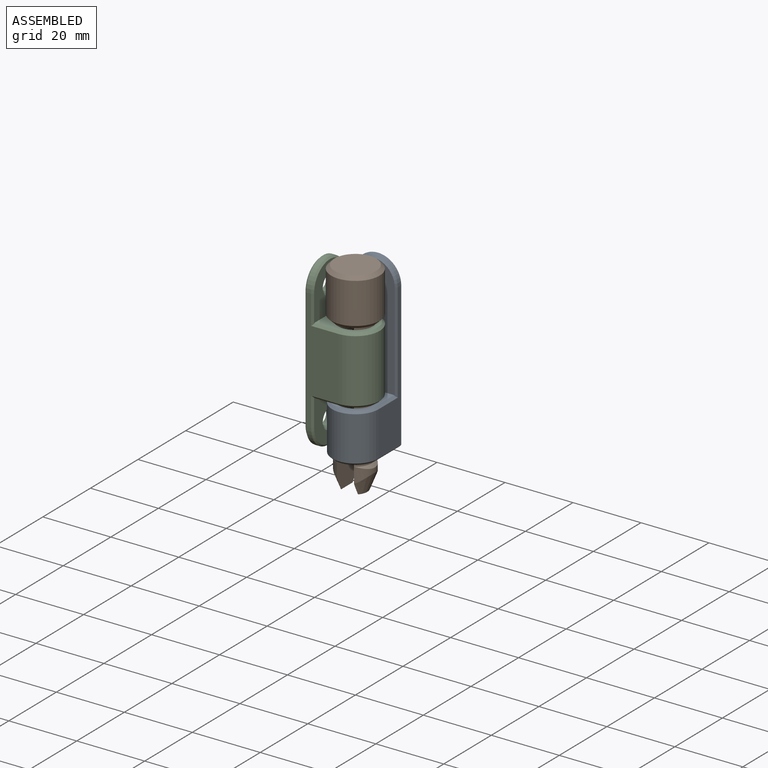
[diagram: assembled view]
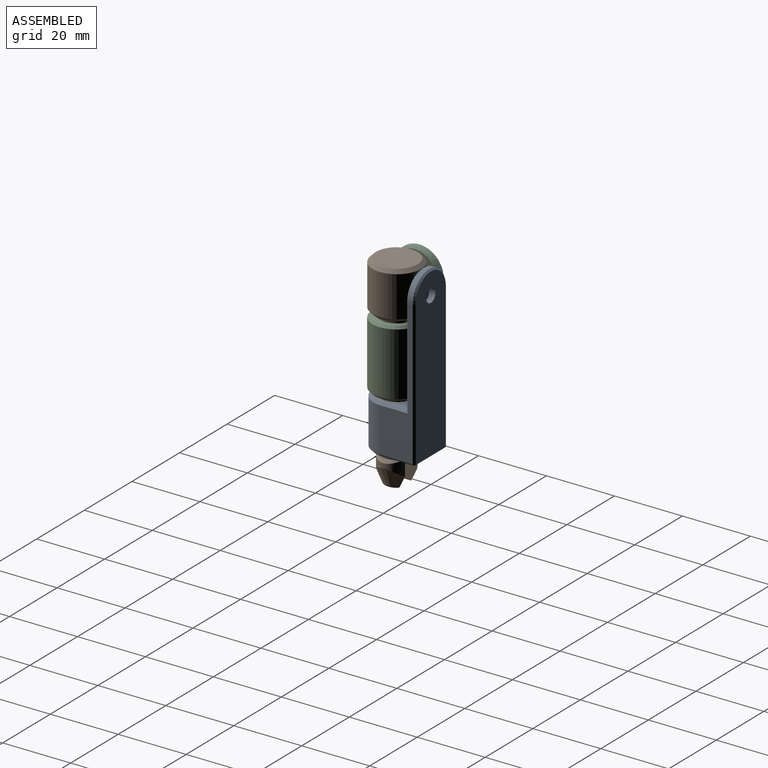
[diagram: assembled view, second angle]
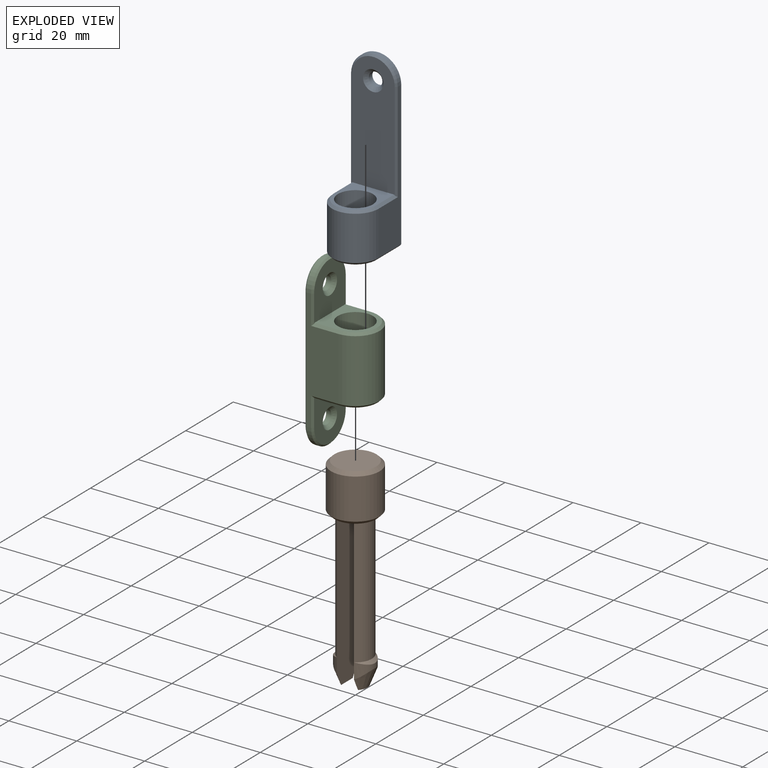
[diagram: exploded view]
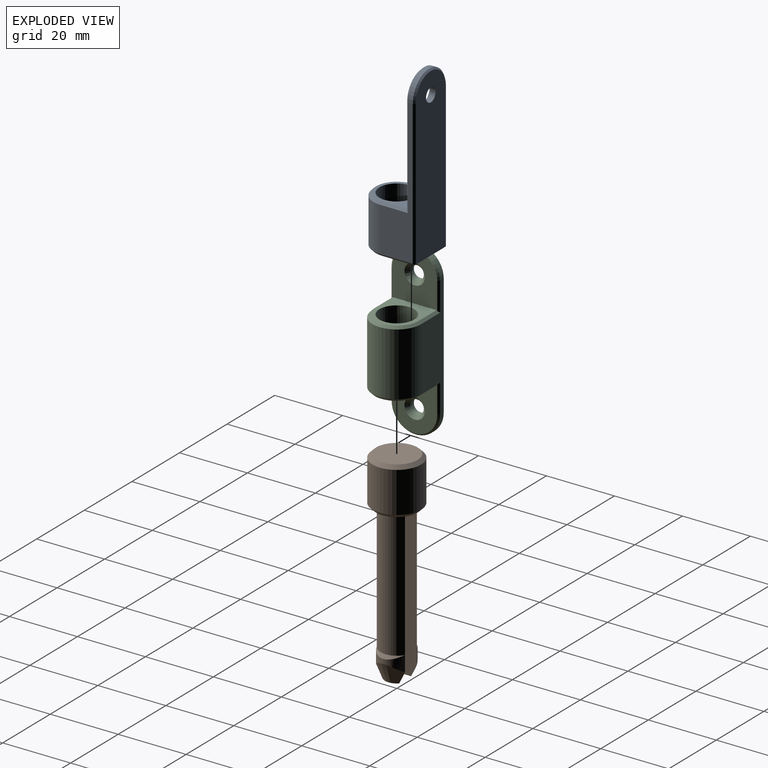
[diagram: exploded view, second angle]
ASSEMBLY  parts=3 mates=2
PART A: 24 faces, bbox 13.7x16.9x50 mm
  f0: plane 42.45x9.5mm, normal (1,0,0), area 168.5mm2, adj f5,f7,f10,f13,f16,f20
  f1: plane 49x12.7mm, normal (0,1,0), area 592.4mm2, adj f8,f16,f17,f18,f19
  f2: plane 35.2x12.7mm, normal (0,-1,0), area 399mm2, adj f3,f9,f10,f12,f20,f21,f22
  f3: plane 13.65x12.3mm, normal (0,0,1), area 68.3mm2, adj f2,f10,f11,f12,f23
  f4: plane 42.45x9.5mm, normal (-1,0,0), area 168.5mm2, adj f5,f7,f12,f15,f19,f22
  f5: cylinder r=6.85mm len=13.7mm, axis (0,0,1), area 281.9mm2, adj f0,f4,f11,f14
  f6: plane 15.65x12.3mm, normal (0,0,-1), area 92.9mm2, adj f13,f14,f15,f17,f23
  f7: cylinder r=6.85mm len=13.7mm, axis (0,-1,0), area 32.3mm2, adj f0,f4,f18,f21
  f8: cylinder r=2mm len=4mm, axis (0,-1,0), area 18.8mm2, adj f1,f9
  f9: cone r=3mm half-angle=45deg, axis (0,-1,0), area 22.2mm2, adj f2,f8
  f10: plane 8x0.7mm, normal (0.71,0,0.71), area 7.6mm2, adj f0,f2,f3,f11,f20
  f11: cone r=6.15mm half-angle=45deg, axis (0,0,-1), area 20.2mm2, adj f3,f5,f10,f12
  f12: plane 8x0.7mm, normal (-0.71,0,0.71), area 7.6mm2, adj f2,f3,f4,f11,f22
  f13: plane 9.85x0.7mm, normal (0.71,0,-0.71), area 9.6mm2, adj f0,f6,f14,f16,f17
  f14: cone r=6.85mm half-angle=45deg, axis (0,0,1), area 20.2mm2, adj f5,f6,f13,f15
  f15: plane 9.85x0.7mm, normal (-0.71,0,-0.71), area 9.6mm2, adj f4,f6,f14,f17,f19
  f16: plane 42.8x0.5mm, normal (0.71,0.71,0), area 30.2mm2, adj f0,f1,f13,f17,f18
  f17: plane 13x0.5mm, normal (0,0.71,-0.71), area 9mm2, adj f1,f6,f13,f15,f16,f19
  f18: cone r=6.85mm half-angle=45deg, axis (0,-1,0), area 14.7mm2, adj f1,f7,f16,f19
  f19: plane 42.8x0.5mm, normal (-0.71,0.71,0), area 30.2mm2, adj f1,f4,f15,f17,f18
  f20: plane 29.35x0.5mm, normal (0.71,-0.71,0), area 20.6mm2, adj f0,f2,f10,f21
  f21: cone r=6.85mm half-angle=45deg, axis (0,1,0), area 14.7mm2, adj f2,f7,f20,f22
  f22: plane 29.35x0.5mm, normal (-0.71,-0.71,0), area 20.6mm2, adj f2,f4,f12,f21
  f23: cylinder r=5.15mm len=14.5mm, axis (0,0,1), area 469.2mm2, adj f3,f6
PART B: 17 faces, bbox 14.3x14.3x59.5 mm
  f0: plane 4.9x1mm, normal (0,0,-1), area 3.4mm2, adj f1,f12
  f1: plane 45.5x8.31mm, normal (1,0,0), area 372.5mm2, adj f0,f4,f7,f9,f12
  f2: plane 4.9x1mm, normal (0,0,-1), area 3.4mm2, adj f3,f11
  f3: plane 45.5x8.31mm, normal (-1,0,0), area 372.5mm2, adj f2,f5,f6,f9,f11
  f4: extruded ~8.31x4.55mm, area 29.9mm2, adj f1,f12,f15
  f5: extruded ~8.31x4.55mm, area 29.9mm2, adj f3,f11,f16
  f6: cylinder r=4.85mm len=37.5mm, axis (0,0,1), area 374.4mm2, adj f3,f9,f16
  f7: cylinder r=4.85mm len=37.5mm, axis (0,0,1), area 374.4mm2, adj f1,f9,f15
  f8: cylinder r=7.15mm len=14.3mm, axis (0,0,1), area 539.1mm2, adj f13,f14
  f9: plane 12.3x12.3mm, normal (0,0,-1), area 91.2mm2, adj f1,f3,f6,f7,f13
  f10: plane 12.3x12.3mm, normal (0,0,1), area 118.8mm2, adj f14
  f11: cone r=5.85mm half-angle=21.4deg, axis (0,0,1), area 43.8mm2, adj f2,f3,f5
  f12: cone r=5.85mm half-angle=21.4deg, axis (0,0,1), area 43.8mm2, adj f0,f1,f4
  f13: cone r=7.15mm half-angle=45deg, axis (0,0,1), area 59.1mm2, adj f8,f9
  f14: cone r=6.15mm half-angle=45deg, axis (0,0,-1), area 59.1mm2, adj f8,f10
  f15: cone r=4.85mm half-angle=45deg, axis (0,0,-1), area 7.8mm2, adj f4,f7
  f16: cone r=4.85mm half-angle=45deg, axis (0,0,-1), area 7.8mm2, adj f5,f6
PART C: 31 faces, bbox 17.2x14.3x50 mm
  f0: plane 14.7x13.3mm, normal (1,0,0), area 145.6mm2, adj f8,f13,f18,f20,f25,f26,f27
  f1: plane 35.7x9.5mm, normal (0,1,0), area 202.3mm2, adj f5,f9,f10,f17,f20,f24,f27,f30
  f2: plane 49x13.3mm, normal (-1,0,0), area 588.6mm2, adj f11,f12,f21,f22,f23,f24
  f3: plane 35.7x9.5mm, normal (0,-1,0), area 202.3mm2, adj f5,f9,f10,f15,f18,f21,f25,f28
  f4: plane 14.7x13.3mm, normal (1,0,0), area 145.6mm2, adj f7,f14,f15,f17,f28,f29,f30
  f5: cylinder r=7.15mm len=18.6mm, axis (0,0,-1), area 417.8mm2, adj f1,f3,f16,f19
  f6: cylinder r=5.15mm len=20mm, axis (0,0,-1), area 647.2mm2, adj f7,f8
  f7: plane 13.95x12.9mm, normal (0,0,1), area 78.8mm2, adj f4,f6,f15,f16,f17
  f8: plane 13.95x12.9mm, normal (0,0,-1), area 78.8mm2, adj f0,f6,f18,f19,f20
  f9: cylinder r=7.15mm len=14.3mm, axis (1,0,0), area 33.7mm2, adj f1,f3,f22,f29
  f10: cylinder r=7.15mm len=14.3mm, axis (1,0,0), area 33.7mm2, adj f1,f3,f23,f26
  f11: cylinder r=2mm len=4mm, axis (1,0,0), area 18.8mm2, adj f2,f14
  f12: cylinder r=2mm len=4mm, axis (1,0,0), area 18.8mm2, adj f2,f13
  f13: cone r=2mm half-angle=45deg, axis (1,0,0), area 22.2mm2, adj f0,f12
  f14: cone r=2mm half-angle=45deg, axis (1,0,0), area 22.2mm2, adj f4,f11
  f15: plane 8x0.7mm, normal (0,-0.71,0.71), area 7.6mm2, adj f3,f4,f7,f16,f28
  f16: cone r=6.45mm half-angle=45deg, axis (0,0,-1), area 21.1mm2, adj f5,f7,f15,f17
  f17: plane 8x0.7mm, normal (0,0.71,0.71), area 7.6mm2, adj f1,f4,f7,f16,f30
  f18: plane 8x0.7mm, normal (0,-0.71,-0.71), area 7.6mm2, adj f0,f3,f8,f19,f25
  f19: cone r=7.15mm half-angle=45deg, axis (0,0,1), area 21.1mm2, adj f5,f8,f18,f20
  f20: plane 8x0.7mm, normal (0,0.71,-0.71), area 7.6mm2, adj f0,f1,f8,f19,f27
  f21: plane 35.7x0.5mm, normal (-0.71,-0.71,0), area 25.2mm2, adj f2,f3,f22,f23
  f22: cone r=7.15mm half-angle=45deg, axis (1,0,0), area 15.3mm2, adj f2,f9,f21,f24
  f23: cone r=7.15mm half-angle=45deg, axis (1,0,0), area 15.3mm2, adj f2,f10,f21,f24
  f24: plane 35.7x0.5mm, normal (-0.71,0.71,0), area 25.2mm2, adj f1,f2,f22,f23
  f25: plane 8.55x0.5mm, normal (0.71,-0.71,0), area 5.9mm2, adj f0,f3,f18,f26
  f26: cone r=6.65mm half-angle=45deg, axis (-1,0,0), area 15.3mm2, adj f0,f10,f25,f27
  f27: plane 8.55x0.5mm, normal (0.71,0.71,0), area 5.9mm2, adj f0,f1,f20,f26
  f28: plane 8.55x0.5mm, normal (0.71,-0.71,0), area 5.9mm2, adj f3,f4,f15,f29
  f29: cone r=6.65mm half-angle=45deg, axis (-1,0,0), area 15.3mm2, adj f4,f9,f28,f30
  f30: plane 8.55x0.5mm, normal (0.71,0.71,0), area 5.9mm2, adj f1,f4,f17,f29
PLACE A at identity fixed
PLACE B rot(axis=(0,0,1),0deg) t=(0,0,0.91)mm
PLACE C rot(axis=(-1,0,0),180deg) t=(0,0,0.41)mm
MATE cylindrical C.f5 <-> A.f23  axis (0,0,1) through (0,0,-8.89)mm
MATE revolute C.f6 <-> B.f8  axis (0,0,1) through (0,0,10.41)mm
